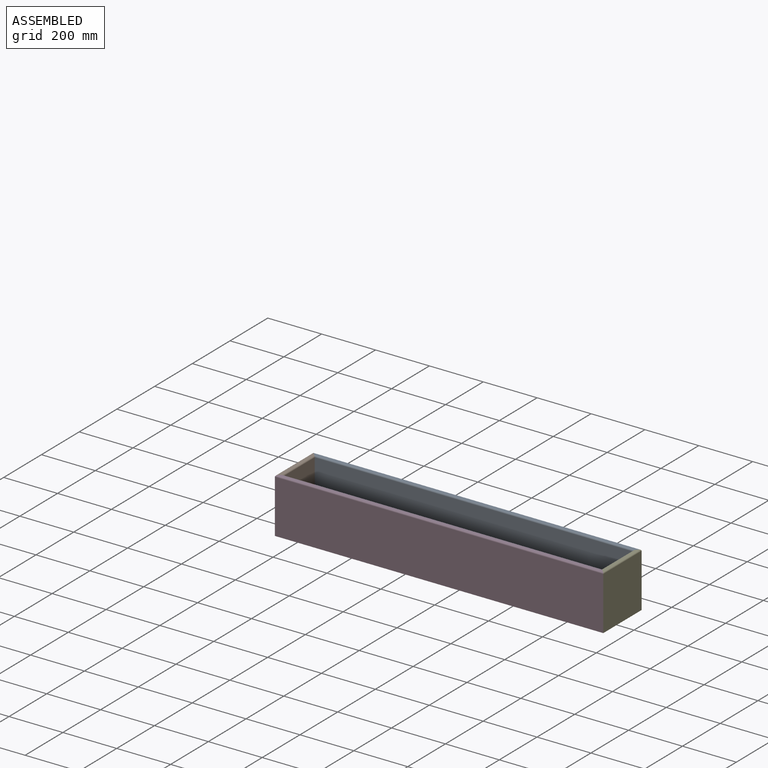
[diagram: assembled view]
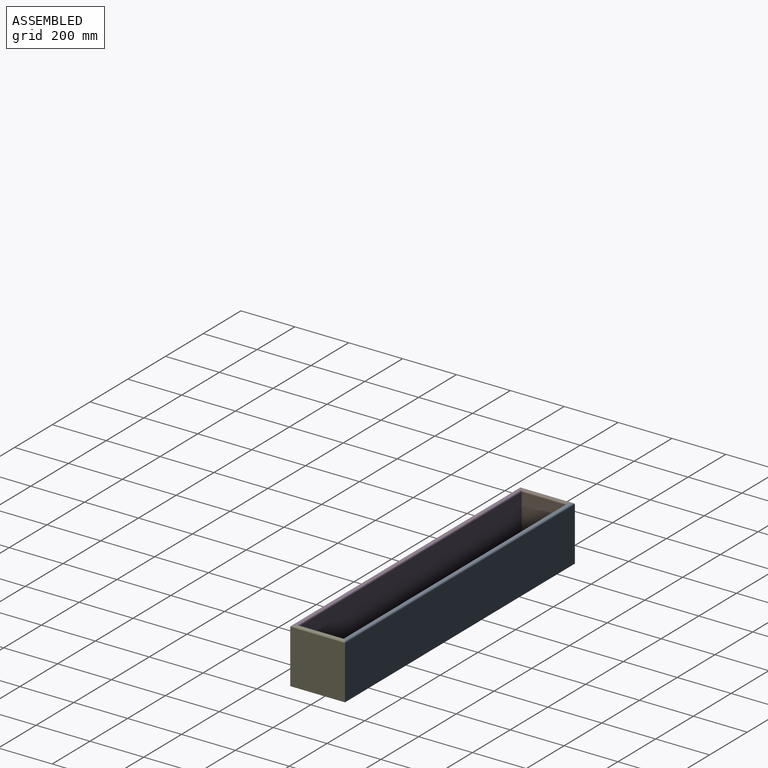
[diagram: assembled view, second angle]
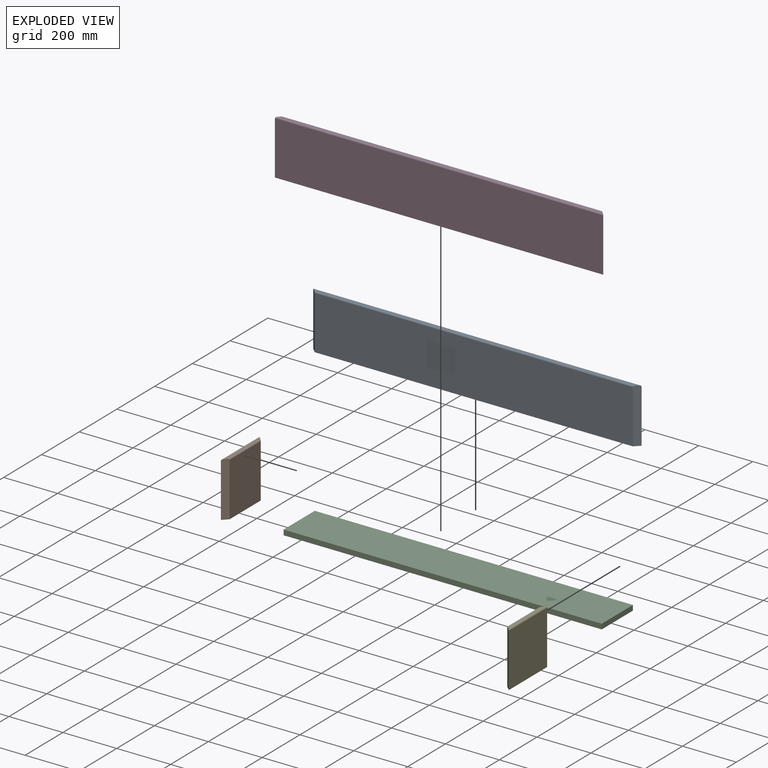
[diagram: exploded view]
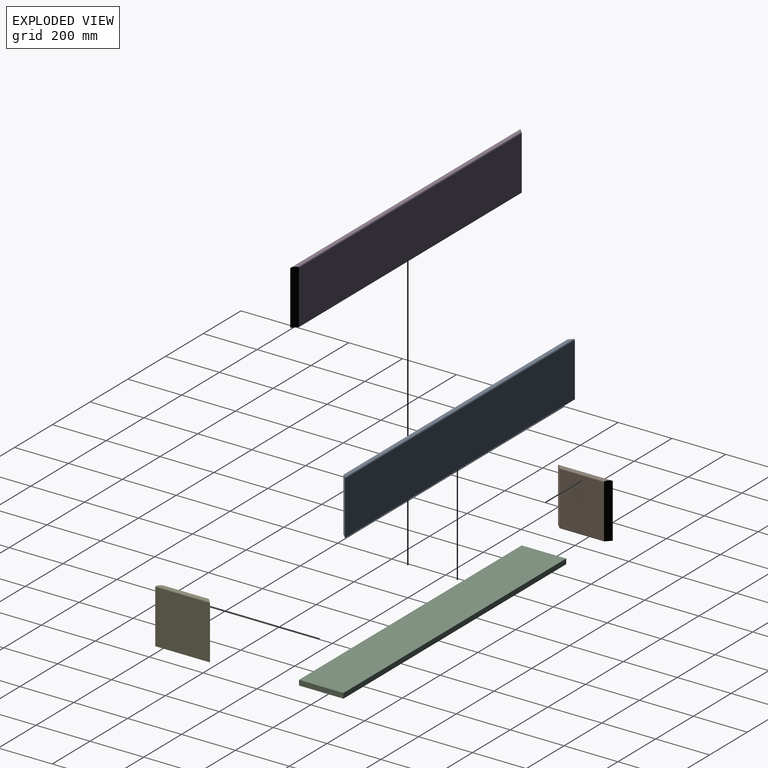
[diagram: exploded view, second angle]
ASSEMBLY  parts=5 mates=4
PART A: 8 faces, bbox 1219.2x19.1x203.2 mm
  f0: plane 1209.04x8.89mm, normal (0,0,1), area 10669.3mm2, adj f4,f5,f6,f7
  f1: plane 1181.1x198.12mm, normal (0,1,0), area 233999.5mm2, adj f2,f4,f5,f7
  f2: plane 1219.2x19.05mm, normal (0,0,-1), area 22862.9mm2, adj f1,f3,f4,f5
  f3: plane 1219.2x198.12mm, normal (0,-1,0), area 241547.9mm2, adj f2,f4,f5,f6
  f4: plane 203.2x19.05mm, normal (-0.71,0.71,0), area 5458.7mm2, adj f0,f1,f2,f3,f6,f7
  f5: plane 203.2x19.05mm, normal (0.71,0.71,0), area 5458.7mm2, adj f0,f1,f2,f3,f6,f7
  f6: cylinder r=5.08mm len=1219.2mm, axis (-1,0,0), area 9699.3mm2, adj f0,f3,f4,f5
  f7: cylinder r=5.08mm len=1191.26mm, axis (1,0,0), area 9454.2mm2, adj f0,f1,f4,f5
PART B: 8 faces, bbox 19.1x203.2x203.2 mm
  f0: plane 203.2x19.05mm, normal (0,0,-1), area 3508.1mm2, adj f1,f3,f4,f5
  f1: plane 203.2x198.12mm, normal (1,0,0), area 40258mm2, adj f0,f3,f4,f6
  f2: plane 193.04x8.89mm, normal (0,0,1), area 1637.1mm2, adj f3,f4,f6,f7
  f3: plane 203.2x19.05mm, normal (-0.71,-0.71,0), area 5458.7mm2, adj f0,f1,f2,f5,f6,f7
  f4: plane 203.2x19.05mm, normal (-0.71,0.71,0), area 5458.7mm2, adj f0,f1,f2,f5,f6,f7
  f5: plane 198.12x165.1mm, normal (-1,0,0), area 32709.6mm2, adj f0,f3,f4,f7
  f6: cylinder r=5.08mm len=203.2mm, axis (0,1,0), area 1592mm2, adj f1,f2,f3,f4
  f7: cylinder r=5.08mm len=175.26mm, axis (0,-1,0), area 1346.9mm2, adj f2,f3,f4,f5
PART C: 6 faces, bbox 1181.1x165.1x19.1 mm
  f0: plane 1181.1x19.05mm, normal (0,-1,0), area 22500mm2, adj f1,f3,f4,f5
  f1: plane 165.1x19.05mm, normal (1,0,0), area 3145.2mm2, adj f0,f2,f4,f5
  f2: plane 1181.1x19.05mm, normal (0,1,0), area 22500mm2, adj f1,f3,f4,f5
  f3: plane 165.1x19.05mm, normal (-1,0,0), area 3145.2mm2, adj f0,f2,f4,f5
  f4: plane 1181.1x165.1mm, normal (0,0,1), area 194999.6mm2, adj f0,f1,f2,f3
  f5: plane 1181.1x165.1mm, normal (0,0,-1), area 194999.6mm2, adj f0,f1,f2,f3
PART D: same geometry as A
PART E: same geometry as B
PLACE A rot(axis=(0,0,1),180deg) t=(-1259.84,98.38,318.58)mm
PLACE B rot(axis=(0,0,1),180deg) t=(-1259.84,98.38,318.58)mm
PLACE C rot(axis=(0,0,1),180deg) t=(-1259.84,98.38,318.58)mm
PLACE D t=(-40.64,-104.82,318.58)mm
PLACE E t=(-40.64,-104.82,318.58)mm
MATE fastened E.f0 <-> C.f5  axis (0,0,-1) through (-59.69,-85.77,318.58)mm
MATE fastened B.f0 <-> C.f5  axis (0,0,-1) through (-1240.79,79.33,318.58)mm
MATE fastened C.f5 <-> A.f2  axis (0,0,-1) through (-1240.79,79.33,318.58)mm
MATE fastened C.f5 <-> D.f2  axis (0,0,-1) through (-1240.79,-85.77,318.58)mm
